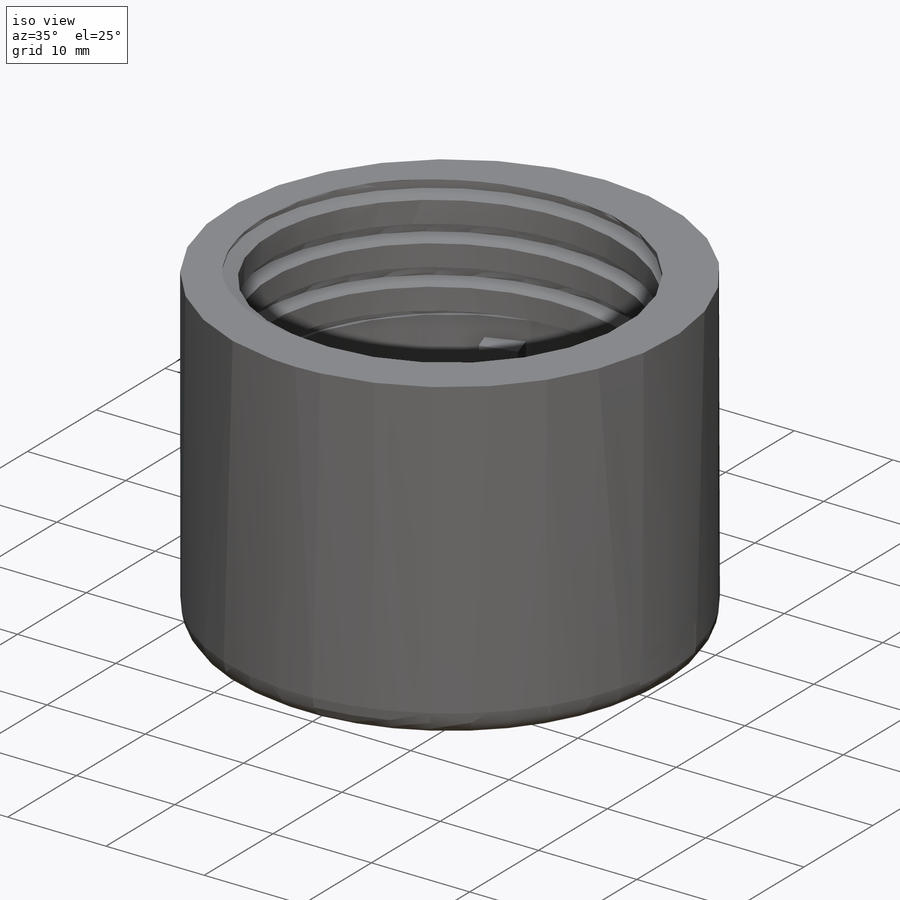
[diagram: iso view]
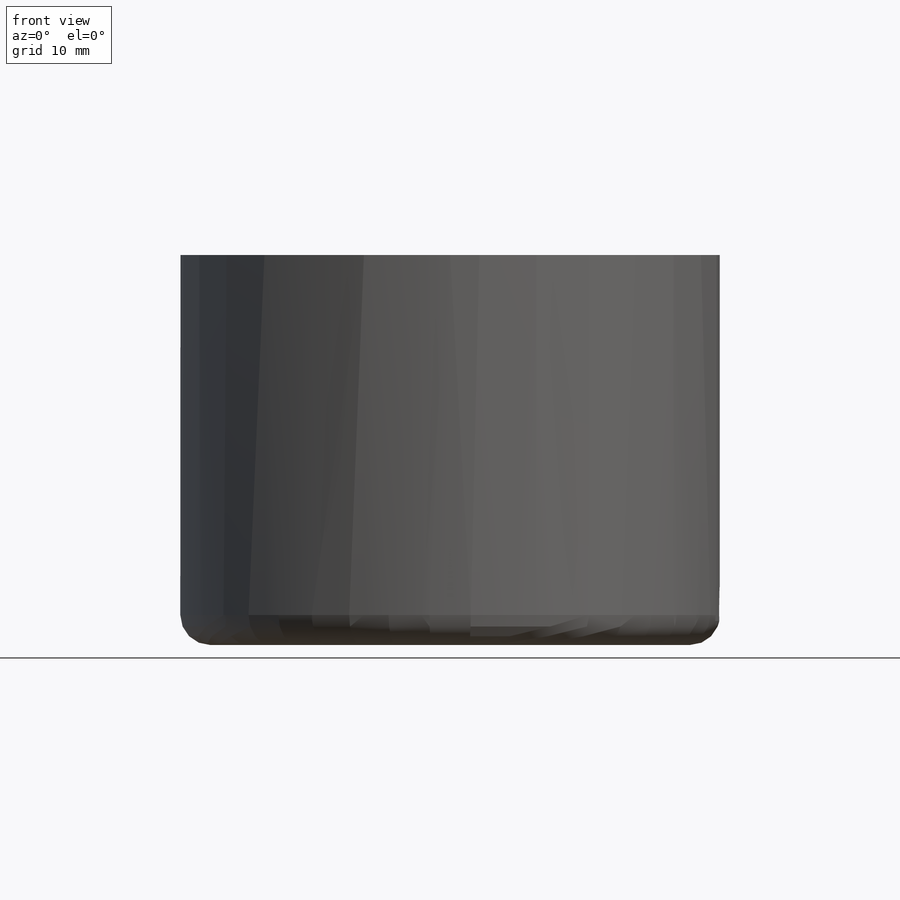
[diagram: front view]
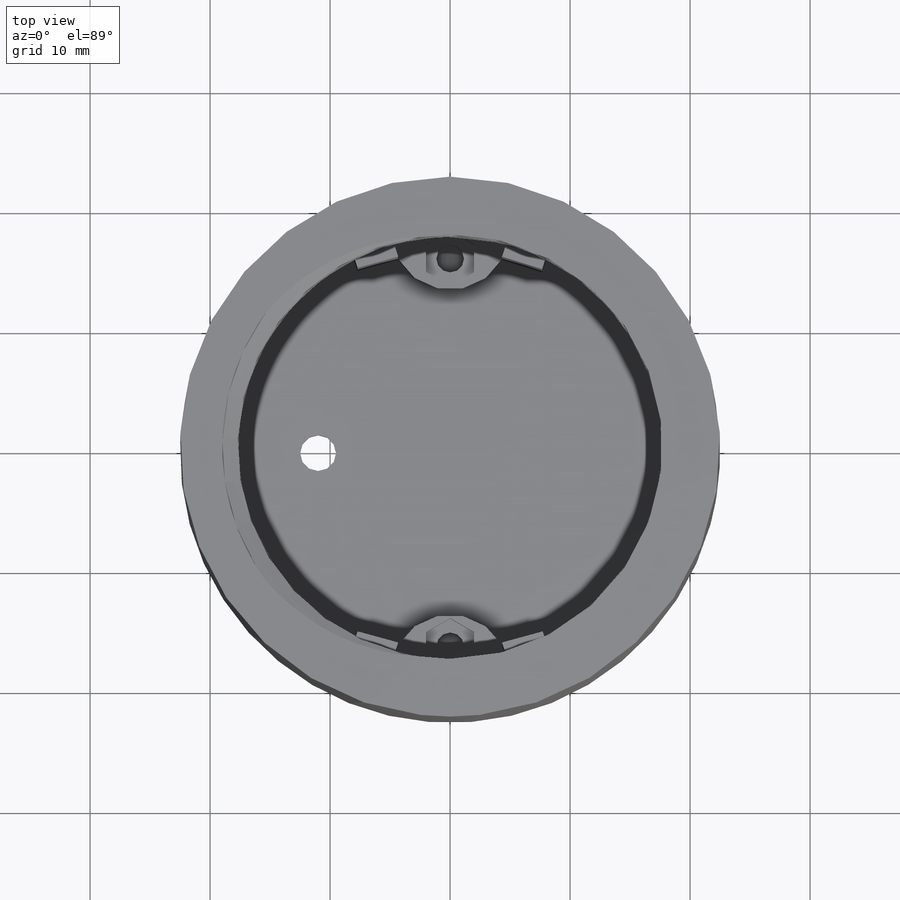
[diagram: top view]
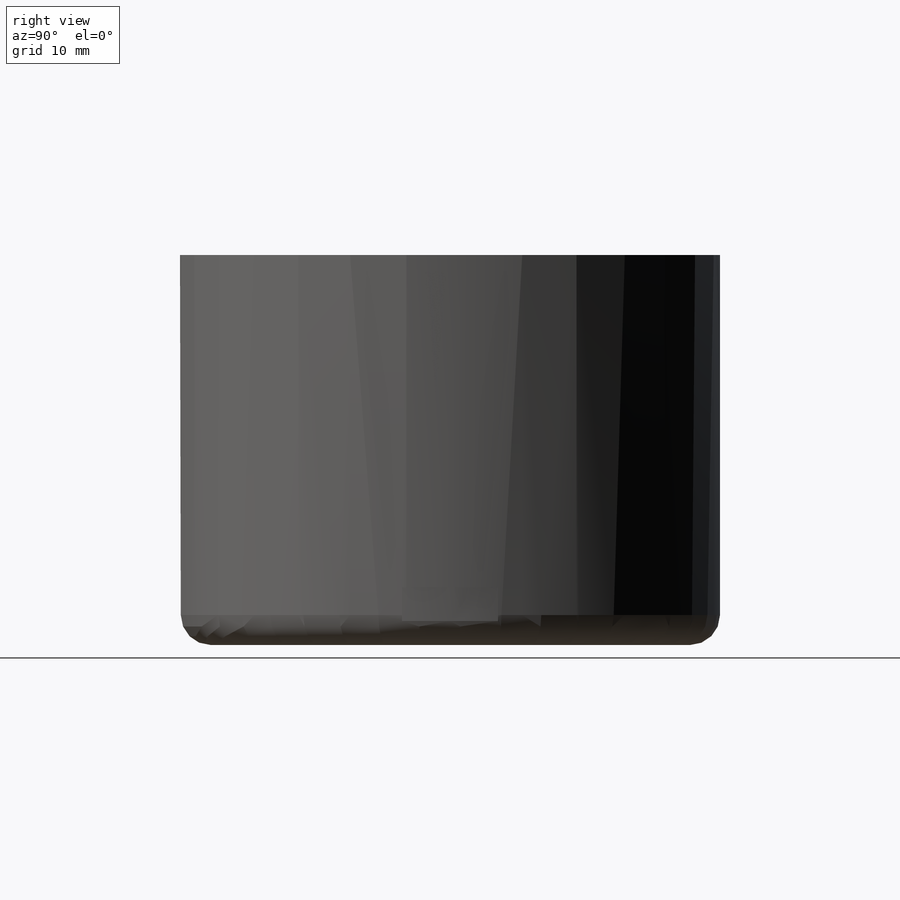
[diagram: right view]
SOLIDWORKS PART (.sldprt)
format: sldprt  version: not decoded by parser v0  size: 567,296 bytes
history: native  units: mm
features: sketch x20, extrude x8, cut_extrude x5, plane x3, material x1, helix x1, sweep x1, hole x1, fillet x1 (+13 scaffold rows collapsed)
feature tree (54):
  scaffold x13  (default folders/planes/origin — collapsed)
  material  "Материал <не указан>"
  sketch  "Эскиз1"  dims[D1=10.0mm]
  extrude  "Бобышка-Вытянуть1"  Depth=1mm
  sketch  "Эскиз2"  dims[D1=18.75mm]
  extrude  "Бобышка-Вытянуть2"  Depth=12.5mm
  sketch  "Эскиз4"  dims[D1=3.0mm]
  cut_extrude  "Вырез-Вытянуть1"  [1 undecoded]
  sketch  "Эскиз9"  dims[D1=21.0mm]
  extrude  "Бобышка-Вытянуть3"  Depth=17mm
  plane  "Плоскость1"  Offset=3mm
  sketch  "Эскиз10"  dims[D1=18.75mm]
  helix  "Спираль1"  Pitch=15.5mm
  sketch  "Эскиз11"  dims[D1=~14.317205mm]
  plane  "Плоскость2"
  sketch  "Эскиз12"  dims[D1=~1.392839mm]
  sweep  "Вырез-По траектории1"
  sketch  "Эскиз13"  dims[D1=16.25mm]
  hole  "Зенковка для  винта с плоской головкой M21"  [1 undecoded]
  sketch  "Трехмерный эскиз1"
  sketch  "Эскиз14"  dims[hole-wizard template sketch: 54 standard entries collapsed; hole parameters kept: c17.Диаметр сквозного отверстия=2.4mm c17.Глубина сквозного отверстия=18.0mm c17.Диаметр передней зенковки=4.4mm c17.D4=~3.666174mm c17.Угол передней зенковки=90.0deg]
  sketch  "Эскиз16"  dims[D1=9.375mm]
  cut_extrude  "Вырез-Вытянуть2"  [1 undecoded]
  sketch  "Эскиз17"  dims[D1=45.0mm]
  extrude  "Бобышка-Вытянуть4"  Depth=2mm
  fillet  "Скругление1"  Radius=2.5mm
  sketch  "Эскиз18"  dims[D1=11.0mm]
  plane  "Плоскость3"
  sketch  "Эскиз19"  dims[D1=1.4mm D2=4.0mm]
  cut_extrude  "Вырез-Вытянуть10"  Depth=2mm
  sketch  "Эскиз20"  dims[c1.D1=~2.035873mm c1.D2=8.8mm c2.D1=~2.152077mm c2.D2=8.8mm]
  cut_extrude  "Вырез-Вытянуть11"  Depth=2mm
  sketch  "Эскиз21"  dims[D1=3.0mm]
  cut_extrude  "Вырез-Вытянуть12"  Depth=2mm
  sketch  "Эскиз22"  dims[D1=4.975mm]
  extrude  "Бобышка-Вытянуть5"  Depth=4mm
  sketch  "Эскиз23"  dims[D1=~0.024586mm]
  extrude  "Бобышка-Вытянуть6"  Depth=2mm
  sketch  "Эскиз25"  dims[D1=~1.759658mm]
  extrude  "Бобышка-Вытянуть7"  Depth=16mm
  sketch  "Эскиз26"  dims[D1=0.3mm]
  extrude  "Бобышка-Вытянуть8"  [1 undecoded]
decode coverage: 31 of 37 modeling features carry decoded parameters
note: ~ marks probable driven/reference dimensions
note: 4 parameter values undecoded
summary: no parameter record found for 4 features
note: suppression state not decoded; provenance and decode notes live in map.json
